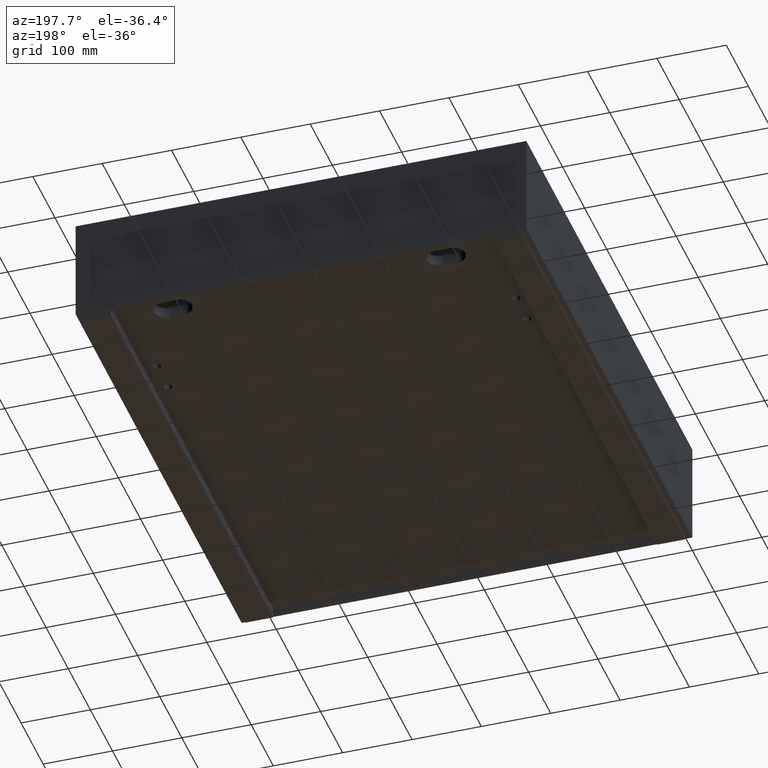
[diagram: clean part render]
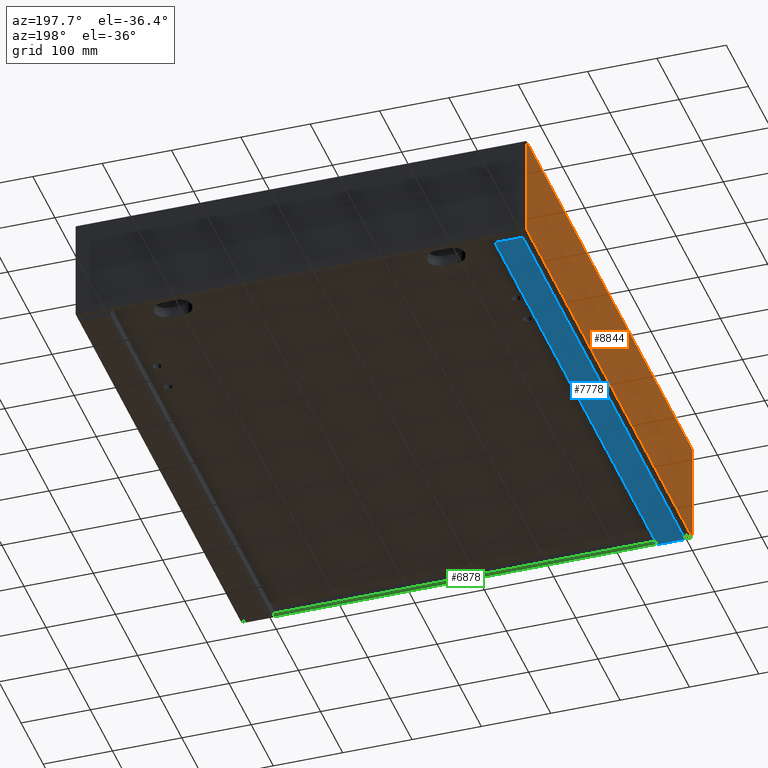
[diagram: same view with three faces highlighted in distinct colors, each labeled with its STEP entity id]
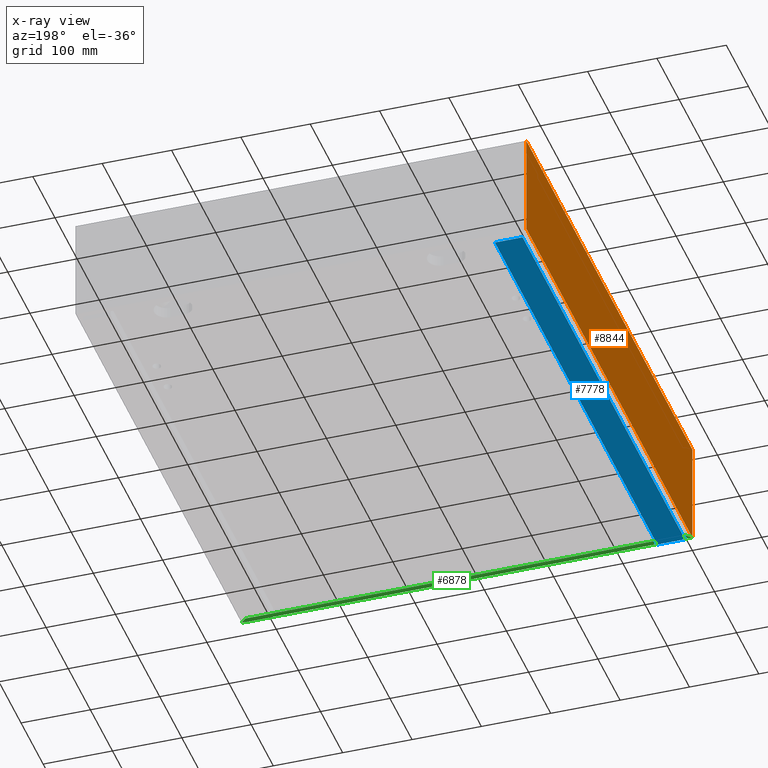
[diagram: x-ray of the same camera — body ghosted, the three highlighted faces saturated]
A machine part, auxiliary view with three faces highlighted in distinct colors.
The next image is the same camera in x-ray (body ghosted, the three faces saturated) — at least one of them is partly hidden behind the body in this view.
Their STEP definitions:

[orange] entity #8844 — the highlighted planar face has unit normal (1, 0, -0).
#721 = DIRECTION ( 'NONE',  ( -7.703719777548943412E-34, -1.000000000000000000, -2.196763842816690895E-34 ) ) ;
#815 = CARTESIAN_POINT ( 'NONE',  ( -4.336808689942017736E-16, 900.2131818450031915, 1.387778780781445676E-14 ) ) ;
#1043 = VERTEX_POINT ( 'NONE', #1891 ) ;
#1054 = CARTESIAN_POINT ( 'NONE',  ( -8.673617379884035472E-16, 750.0000000000000000, -150.0000000000000284 ) ) ;
#1891 = CARTESIAN_POINT ( 'NONE',  ( -4.336808689942017736E-16, 0.0000000000000000000, -150.0000000000000000 ) ) ;
#2279 = CARTESIAN_POINT ( 'NONE',  ( -4.336808689942017736E-16, 900.2131818450031915, -150.0000000000000000 ) ) ;
#2353 = VERTEX_POINT ( 'NONE', #6291 ) ;
#2613 = EDGE_LOOP ( 'NONE', ( #6715, #5251, #5591, #3813 ) ) ;
#2699 = VECTOR ( 'NONE', #721, 1000.000000000000000 ) ;
#2845 = AXIS2_PLACEMENT_3D ( 'NONE', #2279, #5227, #8147 ) ;
#2859 = VECTOR ( 'NONE', #4045, 1000.000000000000000 ) ;
#3443 = LINE ( 'NONE', #6366, #4705 ) ;
#3464 = CARTESIAN_POINT ( 'NONE',  ( -8.673617379884035472E-16, 750.0000000000000000, 0.0000000000000000000 ) ) ;
#3807 = DIRECTION ( 'NONE',  ( -7.703719777548943412E-34, -1.000000000000000000, -2.196763842816690895E-34 ) ) ;
#3813 = ORIENTED_EDGE ( 'NONE', *, *, #4008, .F. ) ;
#4008 = EDGE_CURVE ( 'NONE', #4736, #2353, #7434, .T. ) ;
#4045 = DIRECTION ( 'NONE',  ( 0.0000000000000000000, 2.196763842816690895E-34, 1.000000000000000000 ) ) ;
#4183 = VERTEX_POINT ( 'NONE', #8461 ) ;
#4448 = LINE ( 'NONE', #7345, #2699 ) ;
#4650 = EDGE_CURVE ( 'NONE', #4183, #4736, #7679, .T. ) ;
#4705 = VECTOR ( 'NONE', #9329, 1000.000000000000000 ) ;
#4736 = VERTEX_POINT ( 'NONE', #3464 ) ;
#5227 = DIRECTION ( 'NONE',  ( 1.000000000000000000, 7.703719777548943412E-34, -1.692325306251136007E-67 ) ) ;
#5251 = ORIENTED_EDGE ( 'NONE', *, *, #6245, .T. ) ;
#5591 = ORIENTED_EDGE ( 'NONE', *, *, #9089, .T. ) ;
#5921 = VECTOR ( 'NONE', #3807, 1000.000000000000000 ) ;
#5950 = FACE_OUTER_BOUND ( 'NONE', #2613, .T. ) ;
#6245 = EDGE_CURVE ( 'NONE', #4183, #1043, #4448, .T. ) ;
#6291 = CARTESIAN_POINT ( 'NONE',  ( -4.336808689942017736E-16, 0.0000000000000000000, 1.387778780781445676E-14 ) ) ;
#6366 = CARTESIAN_POINT ( 'NONE',  ( -4.336808689942017736E-16, 0.0000000000000000000, -150.0000000000000000 ) ) ;
#6715 = ORIENTED_EDGE ( 'NONE', *, *, #4650, .F. ) ;
#7345 = CARTESIAN_POINT ( 'NONE',  ( -4.336808689942017736E-16, 900.2131818450031915, -150.0000000000000000 ) ) ;
#7434 = LINE ( 'NONE', #815, #5921 ) ;
#7679 = LINE ( 'NONE', #1054, #2859 ) ;
#8147 = DIRECTION ( 'NONE',  ( 0.0000000000000000000, -2.196763842816690895E-34, -1.000000000000000000 ) ) ;
#8461 = CARTESIAN_POINT ( 'NONE',  ( -8.673617379884035472E-16, 750.0000000000000000, -150.0000000000000284 ) ) ;
#8844 = ADVANCED_FACE ( 'NONE', ( #5950 ), #8885, .F. ) ;
#8885 = PLANE ( 'NONE',  #2845 ) ;
#9089 = EDGE_CURVE ( 'NONE', #1043, #2353, #3443, .T. ) ;
#9329 = DIRECTION ( 'NONE',  ( 0.0000000000000000000, 2.196763842816690895E-34, 1.000000000000000000 ) ) ;

[blue] entity #7778 — the highlighted planar face has unit normal (0, 0, 1).
#21 = EDGE_CURVE ( 'NONE', #9204, #7491, #8113, .T. ) ;
#127 = CARTESIAN_POINT ( 'NONE',  ( 7.999999999999996447, 742.0000000000000000, -157.0000000000002558 ) ) ;
#300 = CARTESIAN_POINT ( 'NONE',  ( -3.469446951953614189E-15, 0.0000000000000000000, -157.0000000000002558 ) ) ;
#519 = VERTEX_POINT ( 'NONE', #1704 ) ;
#1377 = VECTOR ( 'NONE', #4481, 1000.000000000000000 ) ;
#1499 = CARTESIAN_POINT ( 'NONE',  ( 47.99999999999990763, 742.0000000000000000, -157.0000000000002558 ) ) ;
#1704 = CARTESIAN_POINT ( 'NONE',  ( 7.999999999999906741, 8.000000000000007105, -157.0000000000002558 ) ) ;
#1908 = CARTESIAN_POINT ( 'NONE',  ( 7.999999999999996447, 742.0000000000000000, -157.0000000000002558 ) ) ;
#2232 = ORIENTED_EDGE ( 'NONE', *, *, #4459, .T. ) ;
#2258 = LINE ( 'NONE', #5211, #8853 ) ;
#2360 = EDGE_CURVE ( 'NONE', #4472, #9204, #8508, .T. ) ;
#2428 = ORIENTED_EDGE ( 'NONE', *, *, #21, .T. ) ;
#2976 = AXIS2_PLACEMENT_3D ( 'NONE', #300, #3298, #6226 ) ;
#3117 = DIRECTION ( 'NONE',  ( 1.228959410773759853E-16, 1.000000000000000000, 2.736911063134408342E-48 ) ) ;
#3298 = DIRECTION ( 'NONE',  ( 0.0000000000000000000, 0.0000000000000000000, 1.000000000000000000 ) ) ;
#4029 = FACE_OUTER_BOUND ( 'NONE', #4876, .T. ) ;
#4459 = EDGE_CURVE ( 'NONE', #7491, #519, #2258, .T. ) ;
#4472 = VERTEX_POINT ( 'NONE', #5966 ) ;
#4481 = DIRECTION ( 'NONE',  ( -1.134424071483470690E-16, -1.000000000000000000, 0.0000000000000000000 ) ) ;
#4857 = VECTOR ( 'NONE', #3117, 1000.000000000000000 ) ;
#4876 = EDGE_LOOP ( 'NONE', ( #9402, #8610, #2428, #2232 ) ) ;
#4878 = DIRECTION ( 'NONE',  ( 1.000000000000000000, -1.394113111515548021E-48, 0.0000000000000000000 ) ) ;
#5211 = CARTESIAN_POINT ( 'NONE',  ( 7.999999999999906741, 8.000000000000007105, -157.0000000000002558 ) ) ;
#5664 = EDGE_CURVE ( 'NONE', #519, #4472, #6771, .T. ) ;
#5966 = CARTESIAN_POINT ( 'NONE',  ( 7.999999999999996447, 742.0000000000000000, -157.0000000000002558 ) ) ;
#6182 = VECTOR ( 'NONE', #4878, 1000.000000000000000 ) ;
#6226 = DIRECTION ( 'NONE',  ( 1.000000000000000000, -1.394113111515548021E-48, 0.0000000000000000000 ) ) ;
#6771 = LINE ( 'NONE', #127, #4857 ) ;
#6935 = PLANE ( 'NONE',  #2976 ) ;
#7270 = CARTESIAN_POINT ( 'NONE',  ( 47.99999999999990763, 742.0000000000000000, -157.0000000000002558 ) ) ;
#7491 = VERTEX_POINT ( 'NONE', #7972 ) ;
#7778 = ADVANCED_FACE ( 'NONE', ( #4029 ), #6935, .F. ) ;
#7972 = CARTESIAN_POINT ( 'NONE',  ( 47.99999999999982947, 8.000000000000007105, -157.0000000000002558 ) ) ;
#8113 = LINE ( 'NONE', #1499, #1377 ) ;
#8126 = DIRECTION ( 'NONE',  ( -1.000000000000000000, 1.394113111515548021E-48, 0.0000000000000000000 ) ) ;
#8508 = LINE ( 'NONE', #1908, #6182 ) ;
#8610 = ORIENTED_EDGE ( 'NONE', *, *, #2360, .T. ) ;
#8853 = VECTOR ( 'NONE', #8126, 1000.000000000000000 ) ;
#9204 = VERTEX_POINT ( 'NONE', #7270 ) ;
#9402 = ORIENTED_EDGE ( 'NONE', *, *, #5664, .T. ) ;

[green] entity #6878 — the highlighted planar face has unit normal (0, 0, 1).
#82 = CARTESIAN_POINT ( 'NONE',  ( 642.0000000000001137, 8.000000000000001776, -150.0000000000000284 ) ) ;
#286 = PLANE ( 'NONE',  #2187 ) ;
#1122 = VECTOR ( 'NONE', #8281, 1000.000000000000000 ) ;
#1343 = CARTESIAN_POINT ( 'NONE',  ( 0.0000000000000000000, 4.336808689942017736E-16, -150.0000000000000284 ) ) ;
#1651 = CARTESIAN_POINT ( 'NONE',  ( 642.0000000000001137, 8.000000000000001776, -150.0000000000000284 ) ) ;
#1936 = ORIENTED_EDGE ( 'NONE', *, *, #4553, .T. ) ;
#2187 = AXIS2_PLACEMENT_3D ( 'NONE', #3281, #6207, #9162 ) ;
#2412 = LINE ( 'NONE', #5359, #1122 ) ;
#2542 = VECTOR ( 'NONE', #4626, 1000.000000000000114 ) ;
#2562 = DIRECTION ( 'NONE',  ( -1.000000000000000000, -6.162975822039154730E-33, 2.147411887991767976E-32 ) ) ;
#2774 = CARTESIAN_POINT ( 'NONE',  ( 8.000000000000117240, 8.000000000000000000, -150.0000000000000284 ) ) ;
#3273 = ORIENTED_EDGE ( 'NONE', *, *, #5903, .T. ) ;
#3281 = CARTESIAN_POINT ( 'NONE',  ( 0.0000000000000000000, 8.000000000000001776, -150.0000000000000284 ) ) ;
#4252 = VECTOR ( 'NONE', #5716, 1000.000000000000114 ) ;
#4279 = EDGE_LOOP ( 'NONE', ( #5354, #1936, #4587, #3273 ) ) ;
#4502 = VERTEX_POINT ( 'NONE', #82 ) ;
#4553 = EDGE_CURVE ( 'NONE', #4502, #6456, #8268, .T. ) ;
#4587 = ORIENTED_EDGE ( 'NONE', *, *, #9374, .T. ) ;
#4626 = DIRECTION ( 'NONE',  ( 0.7071067811865451302, -0.7071067811865500152, -1.734723475976807480E-18 ) ) ;
#4648 = CARTESIAN_POINT ( 'NONE',  ( 650.0000000000000000, 0.0000000000000000000, -150.0000000000000284 ) ) ;
#5354 = ORIENTED_EDGE ( 'NONE', *, *, #9431, .F. ) ;
#5359 = CARTESIAN_POINT ( 'NONE',  ( 0.0000000000000000000, 4.336808689942017736E-16, -150.0000000000000284 ) ) ;
#5716 = DIRECTION ( 'NONE',  ( 0.7071067811865451302, 0.7071067811865500152, 8.673617379884034509E-19 ) ) ;
#5903 = EDGE_CURVE ( 'NONE', #8740, #6190, #9391, .T. ) ;
#6082 = VECTOR ( 'NONE', #2562, 1000.000000000000000 ) ;
#6190 = VERTEX_POINT ( 'NONE', #8025 ) ;
#6207 = DIRECTION ( 'NONE',  ( 2.147411887991767976E-32, 1.734723475976806324E-18, 1.000000000000000000 ) ) ;
#6212 = LINE ( 'NONE', #9170, #6082 ) ;
#6456 = VERTEX_POINT ( 'NONE', #4648 ) ;
#6878 = ADVANCED_FACE ( 'NONE', ( #6919 ), #286, .F. ) ;
#6919 = FACE_OUTER_BOUND ( 'NONE', #4279, .T. ) ;
#8025 = CARTESIAN_POINT ( 'NONE',  ( 8.000000000000117240, 8.000000000000000000, -150.0000000000000284 ) ) ;
#8268 = LINE ( 'NONE', #1651, #2542 ) ;
#8281 = DIRECTION ( 'NONE',  ( -1.000000000000000000, -6.162975822039154730E-33, 2.147411887991767976E-32 ) ) ;
#8740 = VERTEX_POINT ( 'NONE', #1343 ) ;
#9162 = DIRECTION ( 'NONE',  ( 1.000000000000000000, 6.162975822039154730E-33, -2.147411887991767976E-32 ) ) ;
#9170 = CARTESIAN_POINT ( 'NONE',  ( 0.0000000000000000000, 8.000000000000001776, -150.0000000000000284 ) ) ;
#9374 = EDGE_CURVE ( 'NONE', #6456, #8740, #2412, .T. ) ;
#9391 = LINE ( 'NONE', #2774, #4252 ) ;
#9431 = EDGE_CURVE ( 'NONE', #4502, #6190, #6212, .T. ) ;